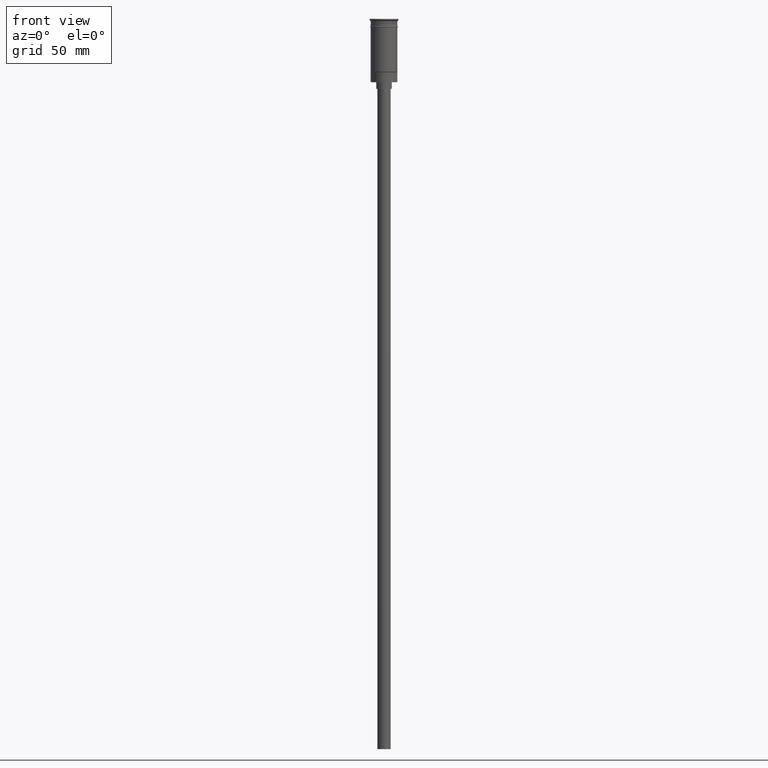
[diagram: clean part render]
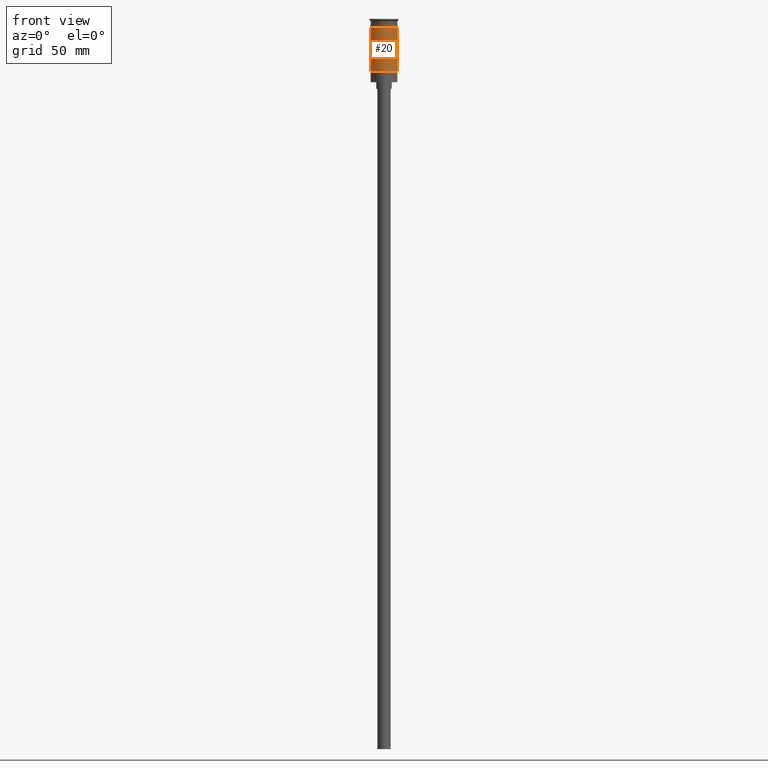
[diagram: same view with one face highlighted and labeled with its STEP entity id]
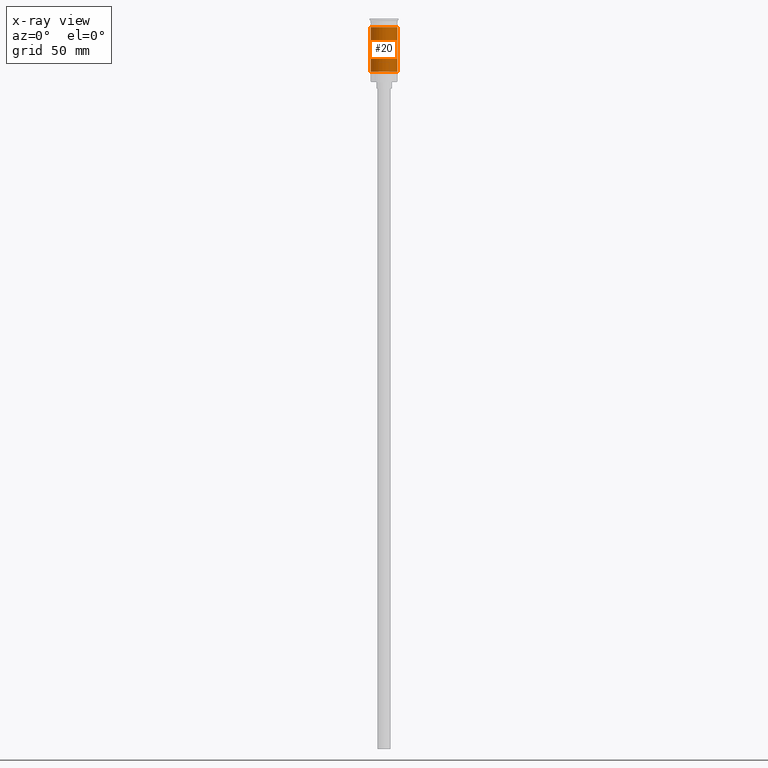
[diagram: x-ray of the same camera — body ghosted, the highlighted face saturated]
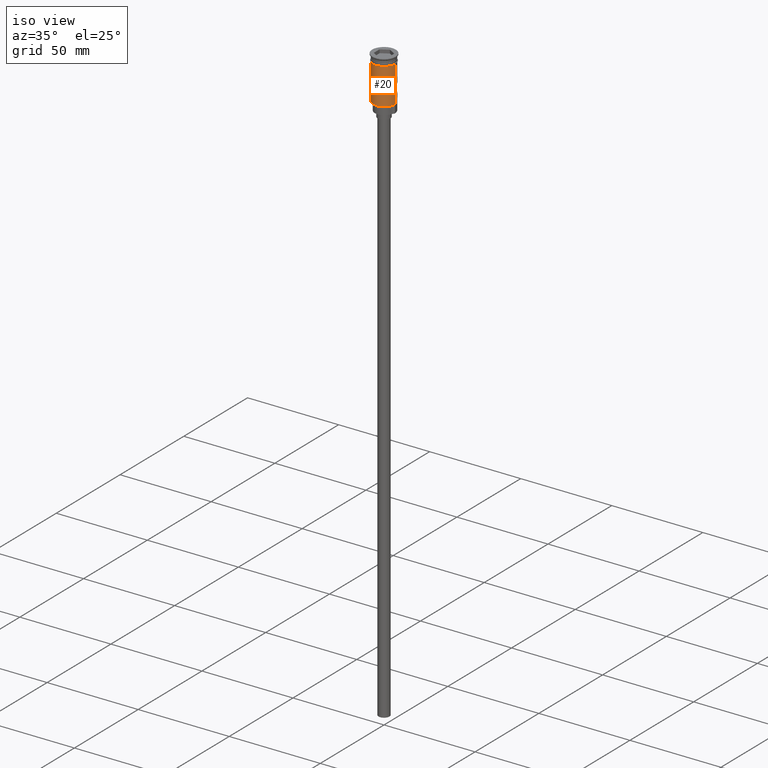
[diagram: same view with one face highlighted and labeled with its STEP entity id]
A machine part, front view. The second image highlights one B-rep face of the part: STEP entity #20.
The next image is the same camera in x-ray: the body ghosted, the highlighted face saturated — about 0% of this face is hidden behind the body in this view.
A second angle (iso view) of the same face is appended — the face is thin or edge-on in the first view.
In plain terms, the highlighted cylindrical surface (edge-blend (fillet) strip) has radius 6 mm, axis along (-0, -0, 1).
Its self-contained STEP definition (entity closure, byte-faithful):
#20 = ADVANCED_FACE ( 'NONE', ( #1452 ), #1478, .T. ) ;
#41 = VECTOR ( 'NONE', #1571, 1000.000000000000000 ) ;
#64 = DIRECTION ( 'NONE',  ( -0.000000000000000000, -0.000000000000000000, 1.000000000000000000 ) ) ;
#67 = VERTEX_POINT ( 'NONE', #234 ) ;
#85 = ORIENTED_EDGE ( 'NONE', *, *, #198, .T. ) ;
#172 = VERTEX_POINT ( 'NONE', #261 ) ;
#198 = EDGE_CURVE ( 'NONE', #67, #1517, #778, .T. ) ;
#234 = CARTESIAN_POINT ( 'NONE',  ( -5.999999999999994671, 0.000000000000000000, -23.79999999999995453 ) ) ;
#245 = CARTESIAN_POINT ( 'NONE',  ( 5.999999999999997335, 7.347880794884115792E-16, -23.79999999999995453 ) ) ;
#261 = CARTESIAN_POINT ( 'NONE',  ( -6.000000000000000000, 7.347880794884119736E-16, -3.799999999999998490 ) ) ;
#279 = DIRECTION ( 'NONE',  ( 1.000000000000000000, 0.000000000000000000, 0.000000000000000000 ) ) ;
#304 = AXIS2_PLACEMENT_3D ( 'NONE', #314, #1258, #788 ) ;
#314 = CARTESIAN_POINT ( 'NONE',  ( 0.000000000000000000, 0.000000000000000000, -23.79999999999995453 ) ) ;
#327 = DIRECTION ( 'NONE',  ( -0.000000000000000000, -0.000000000000000000, 1.000000000000000000 ) ) ;
#461 = AXIS2_PLACEMENT_3D ( 'NONE', #538, #327, #1152 ) ;
#484 = AXIS2_PLACEMENT_3D ( 'NONE', #1303, #810, #279 ) ;
#538 = CARTESIAN_POINT ( 'NONE',  ( 0.000000000000000000, 0.000000000000000000, -3.799999999999998490 ) ) ;
#674 = CARTESIAN_POINT ( 'NONE',  ( 5.999999999999997335, 0.000000000000000000, 0.000000000000000000 ) ) ;
#698 = LINE ( 'NONE', #1179, #41 ) ;
#766 = ORIENTED_EDGE ( 'NONE', *, *, #769, .F. ) ;
#769 = EDGE_CURVE ( 'NONE', #67, #172, #698, .T. ) ;
#778 = CIRCLE ( 'NONE', #304, 5.999999999999997335 ) ;
#784 = LINE ( 'NONE', #674, #1328 ) ;
#786 = EDGE_LOOP ( 'NONE', ( #766, #85, #1253, #997 ) ) ;
#788 = DIRECTION ( 'NONE',  ( -1.000000000000000000, 0.000000000000000000, 0.000000000000000000 ) ) ;
#810 = DIRECTION ( 'NONE',  ( -0.000000000000000000, -0.000000000000000000, 1.000000000000000000 ) ) ;
#926 = CARTESIAN_POINT ( 'NONE',  ( 6.000000000000000000, 0.000000000000000000, -3.799999999999998490 ) ) ;
#994 = VERTEX_POINT ( 'NONE', #926 ) ;
#997 = ORIENTED_EDGE ( 'NONE', *, *, #1217, .F. ) ;
#1143 = CIRCLE ( 'NONE', #461, 6.000000000000000000 ) ;
#1152 = DIRECTION ( 'NONE',  ( 1.000000000000000000, 0.000000000000000000, 0.000000000000000000 ) ) ;
#1179 = CARTESIAN_POINT ( 'NONE',  ( -5.999999999999997335, 7.347880794884116778E-16, 0.000000000000000000 ) ) ;
#1217 = EDGE_CURVE ( 'NONE', #172, #994, #1143, .T. ) ;
#1230 = EDGE_CURVE ( 'NONE', #1517, #994, #784, .T. ) ;
#1253 = ORIENTED_EDGE ( 'NONE', *, *, #1230, .T. ) ;
#1258 = DIRECTION ( 'NONE',  ( -0.000000000000000000, -0.000000000000000000, 1.000000000000000000 ) ) ;
#1303 = CARTESIAN_POINT ( 'NONE',  ( 0.000000000000000000, 0.000000000000000000, 0.000000000000000000 ) ) ;
#1328 = VECTOR ( 'NONE', #64, 1000.000000000000000 ) ;
#1452 = FACE_OUTER_BOUND ( 'NONE', #786, .T. ) ;
#1478 = CYLINDRICAL_SURFACE ( 'NONE', #484, 5.999999999999997335 ) ;
#1517 = VERTEX_POINT ( 'NONE', #245 ) ;
#1571 = DIRECTION ( 'NONE',  ( -0.000000000000000000, -0.000000000000000000, 1.000000000000000000 ) ) ;